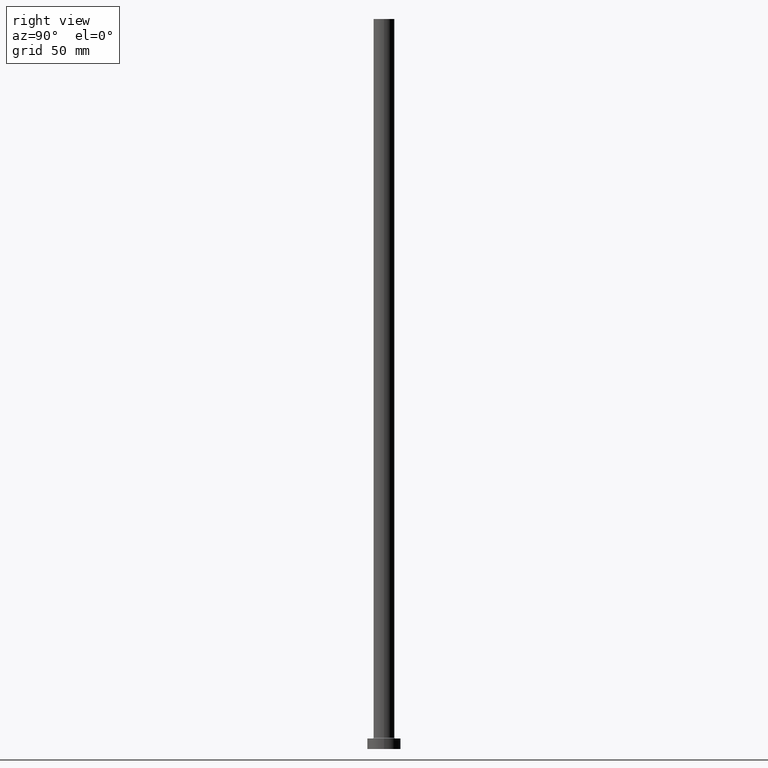
[diagram: clean part render]
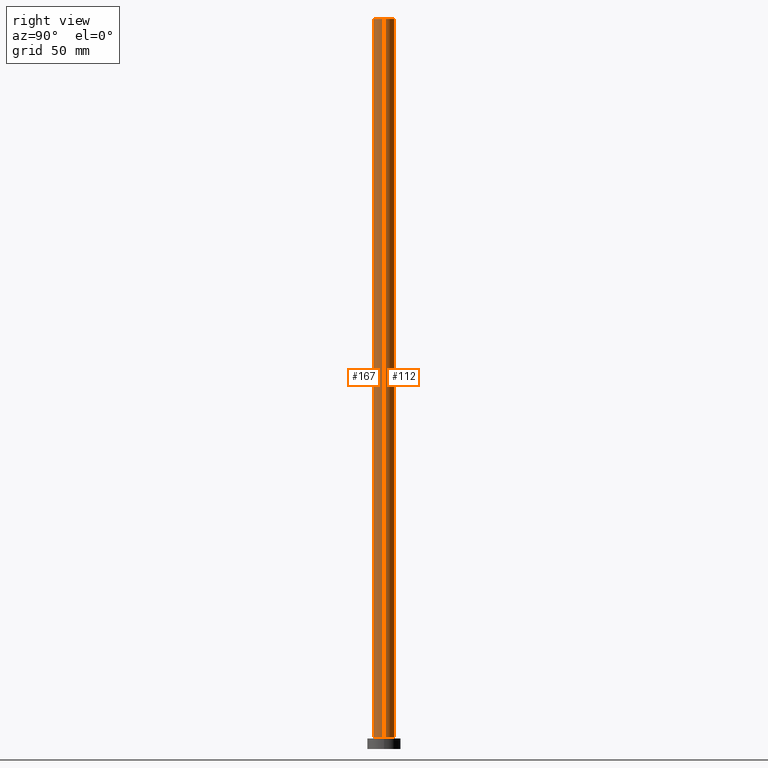
[diagram: same view with one multi-face feature highlighted, each face labeled with its STEP entity id]
A machine part, right view. The highlighted faces form ONE feature: a constant-radius fillet chain: 2 tangent blend faces with common blend radius 5 mm. The faces share edges in the B-rep.
Their STEP definitions:
[1] entity #167 (Cylinder):
#1 = ORIENTED_EDGE ( 'NONE', *, *, #197, .T. ) ;
#15 = CARTESIAN_POINT ( 'NONE',  ( 0.000000000000000000, 0.000000000000000000, 5.500000000000005329 ) ) ;
#26 = EDGE_CURVE ( 'NONE', #454, #93, #266, .T. ) ;
#27 = CIRCLE ( 'NONE', #349, 5.000000000000000000 ) ;
#33 = AXIS2_PLACEMENT_3D ( 'NONE', #177, #296, #265 ) ;
#40 = EDGE_LOOP ( 'NONE', ( #101, #205, #1, #134 ) ) ;
#86 = CARTESIAN_POINT ( 'NONE',  ( 0.000000000000000000, 0.000000000000000000, 350.0000000000000000 ) ) ;
#93 = VERTEX_POINT ( 'NONE', #158 ) ;
#101 = ORIENTED_EDGE ( 'NONE', *, *, #26, .F. ) ;
#102 = FACE_OUTER_BOUND ( 'NONE', #40, .T. ) ;
#134 = ORIENTED_EDGE ( 'NONE', *, *, #418, .T. ) ;
#137 = CARTESIAN_POINT ( 'NONE',  ( -5.000000000000000000, 0.000000000000000000, 350.0000000000000000 ) ) ;
#158 = CARTESIAN_POINT ( 'NONE',  ( 5.000000000000000000, 6.123233995736766282E-16, 5.500000000000005329 ) ) ;
#167 = ADVANCED_FACE ( 'NONE', ( #102 ), #405, .T. ) ;
#175 = CARTESIAN_POINT ( 'NONE',  ( 5.000000000000000000, 6.123233995736766282E-16, 350.0000000000000000 ) ) ;
#177 = CARTESIAN_POINT ( 'NONE',  ( 0.000000000000000000, 0.000000000000000000, 350.0000000000000000 ) ) ;
#178 = VERTEX_POINT ( 'NONE', #180 ) ;
#180 = CARTESIAN_POINT ( 'NONE',  ( -5.000000000000000000, 0.000000000000000000, 350.0000000000000000 ) ) ;
#197 = EDGE_CURVE ( 'NONE', #178, #428, #335, .T. ) ;
#205 = ORIENTED_EDGE ( 'NONE', *, *, #378, .F. ) ;
#217 = DIRECTION ( 'NONE',  ( -0.000000000000000000, -0.000000000000000000, -1.000000000000000000 ) ) ;
#220 = DIRECTION ( 'NONE',  ( 0.000000000000000000, 0.000000000000000000, 1.000000000000000000 ) ) ;
#223 = CARTESIAN_POINT ( 'NONE',  ( -5.000000000000000000, 0.000000000000000000, 5.500000000000005329 ) ) ;
#233 = VECTOR ( 'NONE', #441, 1000.000000000000000 ) ;
#239 = DIRECTION ( 'NONE',  ( 1.000000000000000000, 0.000000000000000000, 0.000000000000000000 ) ) ;
#265 = DIRECTION ( 'NONE',  ( -1.000000000000000000, 0.000000000000000000, 0.000000000000000000 ) ) ;
#266 = LINE ( 'NONE', #175, #233 ) ;
#296 = DIRECTION ( 'NONE',  ( -0.000000000000000000, -0.000000000000000000, -1.000000000000000000 ) ) ;
#307 = DIRECTION ( 'NONE',  ( 0.000000000000000000, 0.000000000000000000, 1.000000000000000000 ) ) ;
#335 = LINE ( 'NONE', #137, #397 ) ;
#349 = AXIS2_PLACEMENT_3D ( 'NONE', #86, #307, #239 ) ;
#378 = EDGE_CURVE ( 'NONE', #178, #454, #27, .T. ) ;
#389 = CARTESIAN_POINT ( 'NONE',  ( 5.000000000000000000, 6.123233995736766282E-16, 350.0000000000000000 ) ) ;
#397 = VECTOR ( 'NONE', #217, 1000.000000000000000 ) ;
#405 = CYLINDRICAL_SURFACE ( 'NONE', #33, 5.000000000000000000 ) ;
#415 = CIRCLE ( 'NONE', #450, 5.000000000000000000 ) ;
#418 = EDGE_CURVE ( 'NONE', #428, #93, #415, .T. ) ;
#426 = DIRECTION ( 'NONE',  ( 1.000000000000000000, 0.000000000000000000, 0.000000000000000000 ) ) ;
#428 = VERTEX_POINT ( 'NONE', #223 ) ;
#441 = DIRECTION ( 'NONE',  ( -0.000000000000000000, -0.000000000000000000, -1.000000000000000000 ) ) ;
#450 = AXIS2_PLACEMENT_3D ( 'NONE', #15, #220, #426 ) ;
#454 = VERTEX_POINT ( 'NONE', #389 ) ;
[2] entity #112 (Cylinder):
#2 = DIRECTION ( 'NONE',  ( 0.000000000000000000, 0.000000000000000000, 1.000000000000000000 ) ) ;
#14 = ORIENTED_EDGE ( 'NONE', *, *, #26, .T. ) ;
#25 = AXIS2_PLACEMENT_3D ( 'NONE', #452, #127, #417 ) ;
#26 = EDGE_CURVE ( 'NONE', #454, #93, #266, .T. ) ;
#80 = ORIENTED_EDGE ( 'NONE', *, *, #440, .F. ) ;
#92 = FACE_OUTER_BOUND ( 'NONE', #195, .T. ) ;
#93 = VERTEX_POINT ( 'NONE', #158 ) ;
#107 = DIRECTION ( 'NONE',  ( 1.000000000000000000, 0.000000000000000000, 0.000000000000000000 ) ) ;
#112 = ADVANCED_FACE ( 'NONE', ( #92 ), #385, .T. ) ;
#127 = DIRECTION ( 'NONE',  ( -0.000000000000000000, -0.000000000000000000, -1.000000000000000000 ) ) ;
#137 = CARTESIAN_POINT ( 'NONE',  ( -5.000000000000000000, 0.000000000000000000, 350.0000000000000000 ) ) ;
#158 = CARTESIAN_POINT ( 'NONE',  ( 5.000000000000000000, 6.123233995736766282E-16, 5.500000000000005329 ) ) ;
#175 = CARTESIAN_POINT ( 'NONE',  ( 5.000000000000000000, 6.123233995736766282E-16, 350.0000000000000000 ) ) ;
#178 = VERTEX_POINT ( 'NONE', #180 ) ;
#180 = CARTESIAN_POINT ( 'NONE',  ( -5.000000000000000000, 0.000000000000000000, 350.0000000000000000 ) ) ;
#181 = EDGE_CURVE ( 'NONE', #93, #428, #202, .T. ) ;
#195 = EDGE_LOOP ( 'NONE', ( #80, #14, #361, #403 ) ) ;
#197 = EDGE_CURVE ( 'NONE', #178, #428, #335, .T. ) ;
#202 = CIRCLE ( 'NONE', #211, 5.000000000000000000 ) ;
#211 = AXIS2_PLACEMENT_3D ( 'NONE', #365, #431, #107 ) ;
#217 = DIRECTION ( 'NONE',  ( -0.000000000000000000, -0.000000000000000000, -1.000000000000000000 ) ) ;
#223 = CARTESIAN_POINT ( 'NONE',  ( -5.000000000000000000, 0.000000000000000000, 5.500000000000005329 ) ) ;
#233 = VECTOR ( 'NONE', #441, 1000.000000000000000 ) ;
#266 = LINE ( 'NONE', #175, #233 ) ;
#300 = CARTESIAN_POINT ( 'NONE',  ( 0.000000000000000000, 0.000000000000000000, 350.0000000000000000 ) ) ;
#318 = CIRCLE ( 'NONE', #371, 5.000000000000000000 ) ;
#335 = LINE ( 'NONE', #137, #397 ) ;
#361 = ORIENTED_EDGE ( 'NONE', *, *, #181, .T. ) ;
#365 = CARTESIAN_POINT ( 'NONE',  ( 0.000000000000000000, 0.000000000000000000, 5.500000000000005329 ) ) ;
#371 = AXIS2_PLACEMENT_3D ( 'NONE', #300, #2, #455 ) ;
#385 = CYLINDRICAL_SURFACE ( 'NONE', #25, 5.000000000000000000 ) ;
#389 = CARTESIAN_POINT ( 'NONE',  ( 5.000000000000000000, 6.123233995736766282E-16, 350.0000000000000000 ) ) ;
#397 = VECTOR ( 'NONE', #217, 1000.000000000000000 ) ;
#403 = ORIENTED_EDGE ( 'NONE', *, *, #197, .F. ) ;
#417 = DIRECTION ( 'NONE',  ( -1.000000000000000000, 0.000000000000000000, 0.000000000000000000 ) ) ;
#428 = VERTEX_POINT ( 'NONE', #223 ) ;
#431 = DIRECTION ( 'NONE',  ( 0.000000000000000000, 0.000000000000000000, 1.000000000000000000 ) ) ;
#440 = EDGE_CURVE ( 'NONE', #454, #178, #318, .T. ) ;
#441 = DIRECTION ( 'NONE',  ( -0.000000000000000000, -0.000000000000000000, -1.000000000000000000 ) ) ;
#452 = CARTESIAN_POINT ( 'NONE',  ( 0.000000000000000000, 0.000000000000000000, 350.0000000000000000 ) ) ;
#454 = VERTEX_POINT ( 'NONE', #389 ) ;
#455 = DIRECTION ( 'NONE',  ( 1.000000000000000000, 0.000000000000000000, 0.000000000000000000 ) ) ;